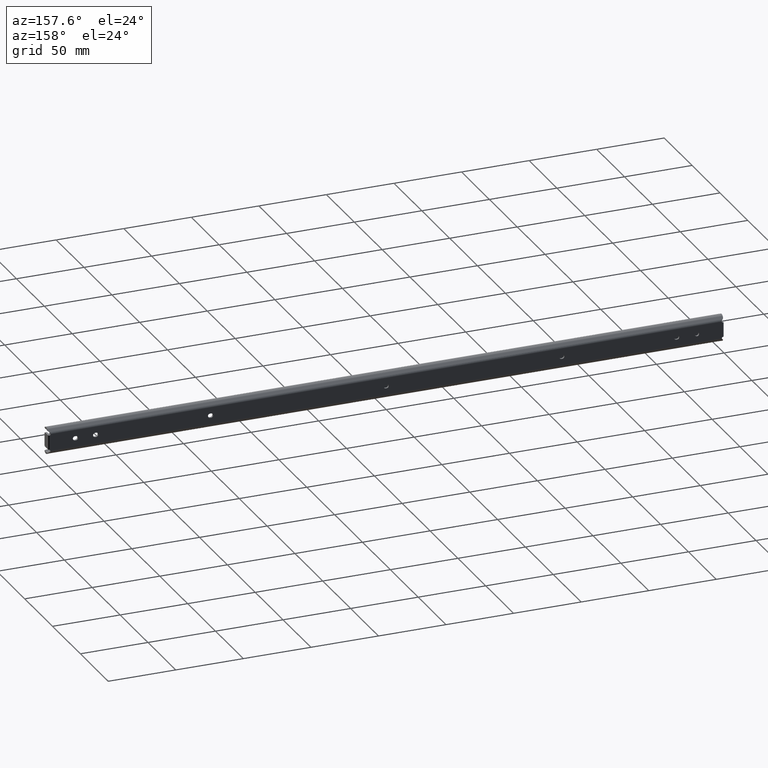
[diagram: clean part render]
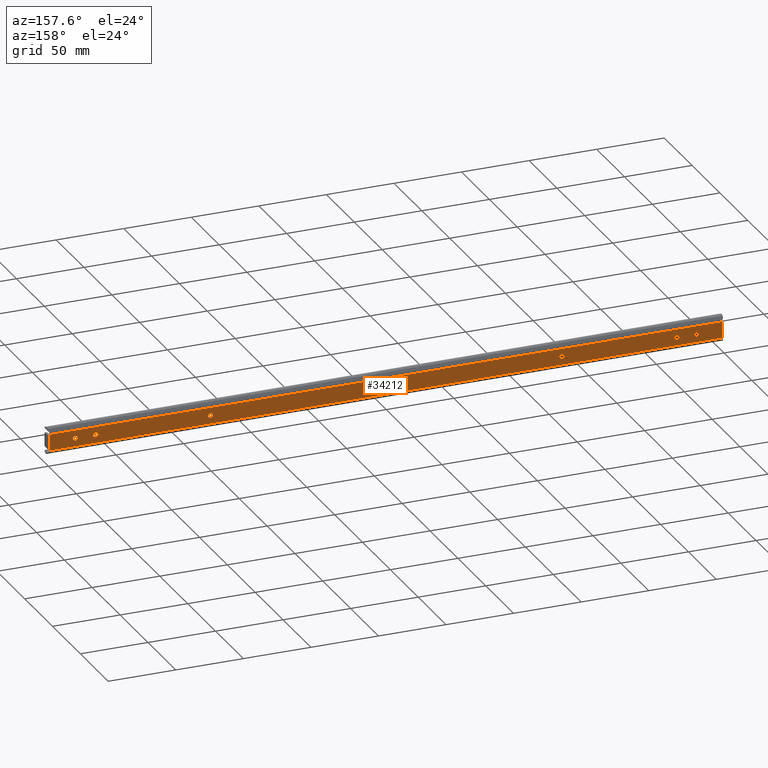
[diagram: same view with one face highlighted and labeled with its STEP entity id]
A machine part, auxiliary view. The second image highlights one B-rep face of the part: STEP entity #34212.
In plain terms, the highlighted face is a freeform B-spline surface patch.
Its self-contained STEP definition (entity closure, byte-faithful):
#30603=CARTESIAN_POINT('',(21.588815240927872,4.968999E-017,-0.188854786000529));
#30604=VERTEX_POINT('',#30603);
#30605=CARTESIAN_POINT('',(20.0,0.0,1.600000000000000));
#30606=VERTEX_POINT('',#30605);
#30607=CARTESIAN_POINT('',(21.588815240927872,4.968999E-017,-0.188854786000529));
#30608=CARTESIAN_POINT('',(21.599999999999998,0.0,-0.094758602104302));
#30609=CARTESIAN_POINT('',(21.600000000000001,0.0,0.0));
#30610=CARTESIAN_POINT('',(21.600000000000005,0.0,1.600000000000000));
#30611=CARTESIAN_POINT('',(20.0,0.0,1.600000000000000));
#30619=(BOUNDED_CURVE()B_SPLINE_CURVE(2,(#30607,#30608,#30609,#30610,#30611),.UNSPECIFIED.,.F.,.U.)B_SPLINE_CURVE_WITH_KNOTS((3,2,3),(0.729562471271285,0.750000000000000,1.0),.UNSPECIFIED.)CURVE()GEOMETRIC_REPRESENTATION_ITEM()RATIONAL_B_SPLINE_CURVE((0.956026749788849,0.976055945704217,1.0,0.707106781186548,1.0))REPRESENTATION_ITEM(''));
#30620=EDGE_CURVE('',#30604,#30606,#30619,.T.);
#30661=CARTESIAN_POINT('',(18.402984322537680,-3.122502E-017,0.097677663462970));
#30662=VERTEX_POINT('',#30661);
#30668=CARTESIAN_POINT('',(20.0,0.0,1.600000000000000));
#30669=CARTESIAN_POINT('',(18.494870293342174,0.0,1.600000000000000));
#30670=CARTESIAN_POINT('',(18.402984322537687,-3.122502E-017,0.097677663462970));
#30678=(BOUNDED_CURVE()B_SPLINE_CURVE(2,(#30668,#30669,#30670),.UNSPECIFIED.,.F.,.U.)B_SPLINE_CURVE_WITH_KNOTS((3,3),(0.0,0.239332962197196),.UNSPECIFIED.)CURVE()GEOMETRIC_REPRESENTATION_ITEM()RATIONAL_B_SPLINE_CURVE((1.0,0.719603993335620,0.976072041577245))REPRESENTATION_ITEM(''));
#30679=EDGE_CURVE('',#30606,#30662,#30678,.T.);
#30702=CARTESIAN_POINT('',(20.0,0.0,-1.600000000000000));
#30703=VERTEX_POINT('',#30702);
#30704=CARTESIAN_POINT('',(20.0,0.0,-1.600000000000000));
#30705=CARTESIAN_POINT('',(21.421079222517434,0.0,-1.600000000000000));
#30706=CARTESIAN_POINT('',(21.588815240927868,4.968999E-017,-0.188854786000529));
#30714=(BOUNDED_CURVE()B_SPLINE_CURVE(2,(#30704,#30705,#30706),.UNSPECIFIED.,.F.,.U.)B_SPLINE_CURVE_WITH_KNOTS((3,3),(0.500000000000000,0.729562471271285),.UNSPECIFIED.)CURVE()GEOMETRIC_REPRESENTATION_ITEM()RATIONAL_B_SPLINE_CURVE((1.0,0.731050835482330,0.956026749788850))REPRESENTATION_ITEM(''));
#30715=EDGE_CURVE('',#30703,#30604,#30714,.T.);
#30717=CARTESIAN_POINT('',(18.402984322537687,-3.122502E-017,0.097677663462970));
#30718=CARTESIAN_POINT('',(18.399999999999999,0.0,0.048884421485522));
#30719=CARTESIAN_POINT('',(18.399999999999999,0.0,0.0));
#30720=CARTESIAN_POINT('',(18.399999999999991,0.0,-1.600000000000000));
#30721=CARTESIAN_POINT('',(20.0,0.0,-1.600000000000000));
#30729=(BOUNDED_CURVE()B_SPLINE_CURVE(2,(#30717,#30718,#30719,#30720,#30721),.UNSPECIFIED.,.F.,.U.)B_SPLINE_CURVE_WITH_KNOTS((3,2,3),(0.239332962197195,0.250000000000000,0.500000000000000),.UNSPECIFIED.)CURVE()GEOMETRIC_REPRESENTATION_ITEM()RATIONAL_B_SPLINE_CURVE((0.976072041577245,0.987502787850927,1.0,0.707106781186548,1.0))REPRESENTATION_ITEM(''));
#30730=EDGE_CURVE('',#30662,#30703,#30729,.T.);
#30781=CARTESIAN_POINT('',(480.300000000000010,8.526513E-014,-1.600000000000000));
#30782=VERTEX_POINT('',#30781);
#30788=CARTESIAN_POINT('',(479.699999999999990,0.0,-1.600000000000025));
#30789=VERTEX_POINT('',#30788);
#30790=CARTESIAN_POINT('',(479.699999999999990,0.0,-1.600000000000025));
#30791=CARTESIAN_POINT('',(480.300000000000010,8.526513E-014,-1.600000000000000));
#30792=QUASI_UNIFORM_CURVE('',1,(#30790,#30791),.UNSPECIFIED.,.F.,.U.);
#30793=EDGE_CURVE('',#30789,#30782,#30792,.T.);
#30839=CARTESIAN_POINT('',(479.699999999999990,0.0,1.599999999999795));
#30840=VERTEX_POINT('',#30839);
#30841=CARTESIAN_POINT('',(479.699999999999990,0.0,1.600000000000025));
#30842=CARTESIAN_POINT('',(478.099999999999970,0.0,1.600000000000026));
#30843=CARTESIAN_POINT('',(478.100000000000020,0.0,0.0));
#30844=CARTESIAN_POINT('',(478.099999999999970,0.0,-1.600000000000026));
#30845=CARTESIAN_POINT('',(479.699999999999990,0.0,-1.600000000000025));
#30853=(BOUNDED_CURVE()B_SPLINE_CURVE(2,(#30841,#30842,#30843,#30844,#30845),.UNSPECIFIED.,.F.,.U.)B_SPLINE_CURVE_WITH_KNOTS((3,2,3),(0.0,0.500000000000000,1.0),.UNSPECIFIED.)CURVE()GEOMETRIC_REPRESENTATION_ITEM()RATIONAL_B_SPLINE_CURVE((1.0,0.707106781186547,1.0,0.707106781186547,1.0))REPRESENTATION_ITEM(''));
#30854=EDGE_CURVE('',#30840,#30789,#30853,.T.);
#30877=CARTESIAN_POINT('',(480.300000000000010,0.0,1.599999999999795));
#30878=VERTEX_POINT('',#30877);
#30879=CARTESIAN_POINT('',(480.300000000000010,0.0,1.599999999999795));
#30880=CARTESIAN_POINT('',(479.699999999999990,0.0,1.599999999999795));
#30881=QUASI_UNIFORM_CURVE('',1,(#30879,#30880),.UNSPECIFIED.,.F.,.U.);
#30882=EDGE_CURVE('',#30878,#30840,#30881,.T.);
#30926=CARTESIAN_POINT('',(480.300000000000010,0.0,-1.600000000000025));
#30927=CARTESIAN_POINT('',(481.899999999999920,0.0,-1.600000000000026));
#30928=CARTESIAN_POINT('',(481.899999999999980,0.0,0.0));
#30929=CARTESIAN_POINT('',(481.899999999999920,0.0,1.600000000000026));
#30930=CARTESIAN_POINT('',(480.300000000000010,0.0,1.600000000000025));
#30938=(BOUNDED_CURVE()B_SPLINE_CURVE(2,(#30926,#30927,#30928,#30929,#30930),.UNSPECIFIED.,.F.,.U.)B_SPLINE_CURVE_WITH_KNOTS((3,2,3),(0.0,0.500000000000000,1.0),.UNSPECIFIED.)CURVE()GEOMETRIC_REPRESENTATION_ITEM()RATIONAL_B_SPLINE_CURVE((1.0,0.707106781186547,1.0,0.707106781186547,1.0))REPRESENTATION_ITEM(''));
#30939=EDGE_CURVE('',#30782,#30878,#30938,.T.);
#30959=CARTESIAN_POINT('',(465.300000000000010,8.526513E-014,-1.600000000000000));
#30960=VERTEX_POINT('',#30959);
#30966=CARTESIAN_POINT('',(464.699999999999990,0.0,-1.600000000000025));
#30967=VERTEX_POINT('',#30966);
#30968=CARTESIAN_POINT('',(464.699999999999990,0.0,-1.600000000000025));
#30969=CARTESIAN_POINT('',(465.300000000000010,8.526513E-014,-1.600000000000000));
#30970=QUASI_UNIFORM_CURVE('',1,(#30968,#30969),.UNSPECIFIED.,.F.,.U.);
#30971=EDGE_CURVE('',#30967,#30960,#30970,.T.);
#31017=CARTESIAN_POINT('',(464.699999999999990,0.0,1.599999999999795));
#31018=VERTEX_POINT('',#31017);
#31019=CARTESIAN_POINT('',(464.699999999999990,0.0,1.600000000000025));
#31020=CARTESIAN_POINT('',(463.099999999999970,0.0,1.600000000000026));
#31021=CARTESIAN_POINT('',(463.100000000000020,0.0,0.0));
#31022=CARTESIAN_POINT('',(463.099999999999970,0.0,-1.600000000000026));
#31023=CARTESIAN_POINT('',(464.699999999999990,0.0,-1.600000000000025));
#31031=(BOUNDED_CURVE()B_SPLINE_CURVE(2,(#31019,#31020,#31021,#31022,#31023),.UNSPECIFIED.,.F.,.U.)B_SPLINE_CURVE_WITH_KNOTS((3,2,3),(0.0,0.500000000000000,1.0),.UNSPECIFIED.)CURVE()GEOMETRIC_REPRESENTATION_ITEM()RATIONAL_B_SPLINE_CURVE((1.0,0.707106781186547,1.0,0.707106781186547,1.0))REPRESENTATION_ITEM(''));
#31032=EDGE_CURVE('',#31018,#30967,#31031,.T.);
#31055=CARTESIAN_POINT('',(465.300000000000010,0.0,1.599999999999795));
#31056=VERTEX_POINT('',#31055);
#31057=CARTESIAN_POINT('',(465.300000000000010,0.0,1.599999999999795));
#31058=CARTESIAN_POINT('',(464.699999999999990,0.0,1.599999999999795));
#31059=QUASI_UNIFORM_CURVE('',1,(#31057,#31058),.UNSPECIFIED.,.F.,.U.);
#31060=EDGE_CURVE('',#31056,#31018,#31059,.T.);
#31104=CARTESIAN_POINT('',(465.300000000000010,0.0,-1.600000000000025));
#31105=CARTESIAN_POINT('',(466.899999999999980,0.0,-1.600000000000026));
#31106=CARTESIAN_POINT('',(466.899999999999980,0.0,0.0));
#31107=CARTESIAN_POINT('',(466.899999999999980,0.0,1.600000000000026));
#31108=CARTESIAN_POINT('',(465.300000000000010,0.0,1.600000000000025));
#31116=(BOUNDED_CURVE()B_SPLINE_CURVE(2,(#31104,#31105,#31106,#31107,#31108),.UNSPECIFIED.,.F.,.U.)B_SPLINE_CURVE_WITH_KNOTS((3,2,3),(0.0,0.500000000000000,1.0),.UNSPECIFIED.)CURVE()GEOMETRIC_REPRESENTATION_ITEM()RATIONAL_B_SPLINE_CURVE((1.0,0.707106781186547,1.0,0.707106781186547,1.0))REPRESENTATION_ITEM(''));
#31117=EDGE_CURVE('',#30960,#31056,#31116,.T.);
#31137=CARTESIAN_POINT('',(380.300000000000010,8.526513E-014,-1.600000000000000));
#31138=VERTEX_POINT('',#31137);
#31144=CARTESIAN_POINT('',(379.699999999999990,0.0,-1.600000000000025));
#31145=VERTEX_POINT('',#31144);
#31146=CARTESIAN_POINT('',(379.699999999999990,0.0,-1.600000000000025));
#31147=CARTESIAN_POINT('',(380.300000000000010,8.526513E-014,-1.600000000000000));
#31148=QUASI_UNIFORM_CURVE('',1,(#31146,#31147),.UNSPECIFIED.,.F.,.U.);
#31149=EDGE_CURVE('',#31145,#31138,#31148,.T.);
#31195=CARTESIAN_POINT('',(379.699999999999990,0.0,1.599999999999795));
#31196=VERTEX_POINT('',#31195);
#31197=CARTESIAN_POINT('',(379.699999999999990,0.0,1.600000000000025));
#31198=CARTESIAN_POINT('',(378.100000000000020,0.0,1.600000000000026));
#31199=CARTESIAN_POINT('',(378.099999999999910,0.0,0.0));
#31200=CARTESIAN_POINT('',(378.100000000000020,0.0,-1.600000000000026));
#31201=CARTESIAN_POINT('',(379.699999999999990,0.0,-1.600000000000025));
#31209=(BOUNDED_CURVE()B_SPLINE_CURVE(2,(#31197,#31198,#31199,#31200,#31201),.UNSPECIFIED.,.F.,.U.)B_SPLINE_CURVE_WITH_KNOTS((3,2,3),(0.0,0.500000000000000,1.0),.UNSPECIFIED.)CURVE()GEOMETRIC_REPRESENTATION_ITEM()RATIONAL_B_SPLINE_CURVE((1.0,0.707106781186547,1.0,0.707106781186547,1.0))REPRESENTATION_ITEM(''));
#31210=EDGE_CURVE('',#31196,#31145,#31209,.T.);
#31233=CARTESIAN_POINT('',(380.300000000000010,0.0,1.599999999999795));
#31234=VERTEX_POINT('',#31233);
#31235=CARTESIAN_POINT('',(380.300000000000010,0.0,1.599999999999795));
#31236=CARTESIAN_POINT('',(379.699999999999990,0.0,1.599999999999795));
#31237=QUASI_UNIFORM_CURVE('',1,(#31235,#31236),.UNSPECIFIED.,.F.,.U.);
#31238=EDGE_CURVE('',#31234,#31196,#31237,.T.);
#31282=CARTESIAN_POINT('',(380.300000000000010,0.0,-1.600000000000025));
#31283=CARTESIAN_POINT('',(381.900000000000150,0.0,-1.600000000000026));
#31284=CARTESIAN_POINT('',(381.900000000000090,0.0,0.0));
#31285=CARTESIAN_POINT('',(381.900000000000150,0.0,1.600000000000026));
#31286=CARTESIAN_POINT('',(380.300000000000010,0.0,1.600000000000025));
#31294=(BOUNDED_CURVE()B_SPLINE_CURVE(2,(#31282,#31283,#31284,#31285,#31286),.UNSPECIFIED.,.F.,.U.)B_SPLINE_CURVE_WITH_KNOTS((3,2,3),(0.0,0.500000000000000,1.0),.UNSPECIFIED.)CURVE()GEOMETRIC_REPRESENTATION_ITEM()RATIONAL_B_SPLINE_CURVE((1.0,0.707106781186547,1.0,0.707106781186547,1.0))REPRESENTATION_ITEM(''));
#31295=EDGE_CURVE('',#31138,#31234,#31294,.T.);
#31315=CARTESIAN_POINT('',(250.300000000000010,8.526513E-014,-1.600000000000080));
#31316=VERTEX_POINT('',#31315);
#31322=CARTESIAN_POINT('',(249.699999999999990,0.0,-1.600000000000000));
#31323=VERTEX_POINT('',#31322);
#31324=CARTESIAN_POINT('',(249.699999999999990,0.0,-1.600000000000000));
#31325=CARTESIAN_POINT('',(250.300000000000010,8.526513E-014,-1.600000000000080));
#31326=QUASI_UNIFORM_CURVE('',1,(#31324,#31325),.UNSPECIFIED.,.F.,.U.);
#31327=EDGE_CURVE('',#31323,#31316,#31326,.T.);
#31373=CARTESIAN_POINT('',(249.699999999999990,0.0,1.600000000000025));
#31374=VERTEX_POINT('',#31373);
#31375=CARTESIAN_POINT('',(249.699999999999990,0.0,1.600000000000000));
#31376=CARTESIAN_POINT('',(248.100000000000080,0.0,1.600000000000000));
#31377=CARTESIAN_POINT('',(248.099999999999990,0.0,0.0));
#31378=CARTESIAN_POINT('',(248.100000000000080,0.0,-1.600000000000000));
#31379=CARTESIAN_POINT('',(249.699999999999990,0.0,-1.600000000000000));
#31387=(BOUNDED_CURVE()B_SPLINE_CURVE(2,(#31375,#31376,#31377,#31378,#31379),.UNSPECIFIED.,.F.,.U.)B_SPLINE_CURVE_WITH_KNOTS((3,2,3),(0.0,0.500000000000000,1.0),.UNSPECIFIED.)CURVE()GEOMETRIC_REPRESENTATION_ITEM()RATIONAL_B_SPLINE_CURVE((1.0,0.707106781186548,1.0,0.707106781186548,1.0))REPRESENTATION_ITEM(''));
#31388=EDGE_CURVE('',#31374,#31323,#31387,.T.);
#31411=CARTESIAN_POINT('',(250.300000000000010,0.0,1.600000000000025));
#31412=VERTEX_POINT('',#31411);
#31413=CARTESIAN_POINT('',(250.300000000000010,0.0,1.600000000000025));
#31414=CARTESIAN_POINT('',(249.699999999999990,0.0,1.600000000000025));
#31415=QUASI_UNIFORM_CURVE('',1,(#31413,#31414),.UNSPECIFIED.,.F.,.U.);
#31416=EDGE_CURVE('',#31412,#31374,#31415,.T.);
#31460=CARTESIAN_POINT('',(250.300000000000010,0.0,-1.600000000000000));
#31461=CARTESIAN_POINT('',(251.900000000000090,0.0,-1.600000000000000));
#31462=CARTESIAN_POINT('',(251.900000000000010,0.0,0.0));
#31463=CARTESIAN_POINT('',(251.900000000000090,0.0,1.600000000000000));
#31464=CARTESIAN_POINT('',(250.300000000000010,0.0,1.600000000000000));
#31472=(BOUNDED_CURVE()B_SPLINE_CURVE(2,(#31460,#31461,#31462,#31463,#31464),.UNSPECIFIED.,.F.,.U.)B_SPLINE_CURVE_WITH_KNOTS((3,2,3),(0.0,0.500000000000000,1.0),.UNSPECIFIED.)CURVE()GEOMETRIC_REPRESENTATION_ITEM()RATIONAL_B_SPLINE_CURVE((1.0,0.707106781186548,1.0,0.707106781186548,1.0))REPRESENTATION_ITEM(''));
#31473=EDGE_CURVE('',#31316,#31412,#31472,.T.);
#31493=CARTESIAN_POINT('',(120.300000000000000,8.526513E-014,-1.600000000000080));
#31494=VERTEX_POINT('',#31493);
#31500=CARTESIAN_POINT('',(119.700000000000000,0.0,-1.600000000000000));
#31501=VERTEX_POINT('',#31500);
#31502=CARTESIAN_POINT('',(119.700000000000000,0.0,-1.600000000000000));
#31503=CARTESIAN_POINT('',(120.300000000000000,8.526513E-014,-1.600000000000080));
#31504=QUASI_UNIFORM_CURVE('',1,(#31502,#31503),.UNSPECIFIED.,.F.,.U.);
#31505=EDGE_CURVE('',#31501,#31494,#31504,.T.);
#31551=CARTESIAN_POINT('',(119.700000000000000,0.0,1.600000000000025));
#31552=VERTEX_POINT('',#31551);
#31553=CARTESIAN_POINT('',(119.700000000000000,0.0,1.600000000000000));
#31554=CARTESIAN_POINT('',(118.099999999999980,0.0,1.600000000000000));
#31555=CARTESIAN_POINT('',(118.099999999999990,0.0,0.0));
#31556=CARTESIAN_POINT('',(118.099999999999980,0.0,-1.600000000000000));
#31557=CARTESIAN_POINT('',(119.700000000000000,0.0,-1.600000000000000));
#31565=(BOUNDED_CURVE()B_SPLINE_CURVE(2,(#31553,#31554,#31555,#31556,#31557),.UNSPECIFIED.,.F.,.U.)B_SPLINE_CURVE_WITH_KNOTS((3,2,3),(0.0,0.500000000000000,1.0),.UNSPECIFIED.)CURVE()GEOMETRIC_REPRESENTATION_ITEM()RATIONAL_B_SPLINE_CURVE((1.0,0.707106781186548,1.0,0.707106781186548,1.0))REPRESENTATION_ITEM(''));
#31566=EDGE_CURVE('',#31552,#31501,#31565,.T.);
#31589=CARTESIAN_POINT('',(120.300000000000000,0.0,1.600000000000025));
#31590=VERTEX_POINT('',#31589);
#31591=CARTESIAN_POINT('',(120.300000000000000,0.0,1.600000000000025));
#31592=CARTESIAN_POINT('',(119.700000000000000,0.0,1.600000000000025));
#31593=QUASI_UNIFORM_CURVE('',1,(#31591,#31592),.UNSPECIFIED.,.F.,.U.);
#31594=EDGE_CURVE('',#31590,#31552,#31593,.T.);
#31638=CARTESIAN_POINT('',(120.300000000000000,0.0,-1.600000000000000));
#31639=CARTESIAN_POINT('',(121.900000000000010,0.0,-1.600000000000000));
#31640=CARTESIAN_POINT('',(121.900000000000010,0.0,0.0));
#31641=CARTESIAN_POINT('',(121.900000000000010,0.0,1.600000000000000));
#31642=CARTESIAN_POINT('',(120.300000000000000,0.0,1.600000000000000));
#31650=(BOUNDED_CURVE()B_SPLINE_CURVE(2,(#31638,#31639,#31640,#31641,#31642),.UNSPECIFIED.,.F.,.U.)B_SPLINE_CURVE_WITH_KNOTS((3,2,3),(0.0,0.500000000000000,1.0),.UNSPECIFIED.)CURVE()GEOMETRIC_REPRESENTATION_ITEM()RATIONAL_B_SPLINE_CURVE((1.0,0.707106781186548,1.0,0.707106781186548,1.0))REPRESENTATION_ITEM(''));
#31651=EDGE_CURVE('',#31494,#31590,#31650,.T.);
#31694=CARTESIAN_POINT('',(35.299999999999997,1.110223E-013,1.600000000000000));
#31695=VERTEX_POINT('',#31694);
#31701=CARTESIAN_POINT('',(35.299999999999997,0.0,-1.600000000000000));
#31702=VERTEX_POINT('',#31701);
#31703=CARTESIAN_POINT('',(35.299999999999997,0.0,-1.600000000000000));
#31704=CARTESIAN_POINT('',(36.900000000000006,0.0,-1.600000000000000));
#31705=CARTESIAN_POINT('',(36.899999999999999,0.0,0.0));
#31706=CARTESIAN_POINT('',(36.900000000000006,0.0,1.600000000000000));
#31707=CARTESIAN_POINT('',(35.299999999999997,1.110223E-013,1.600000000000000));
#31715=(BOUNDED_CURVE()B_SPLINE_CURVE(2,(#31703,#31704,#31705,#31706,#31707),.UNSPECIFIED.,.F.,.U.)B_SPLINE_CURVE_WITH_KNOTS((3,2,3),(0.0,0.500000000000000,1.0),.UNSPECIFIED.)CURVE()GEOMETRIC_REPRESENTATION_ITEM()RATIONAL_B_SPLINE_CURVE((1.0,0.707106781186548,1.0,0.707106781186548,1.0))REPRESENTATION_ITEM(''));
#31716=EDGE_CURVE('',#31702,#31695,#31715,.T.);
#31731=CARTESIAN_POINT('',(34.700000000000003,0.0,1.600000000000000));
#31732=VERTEX_POINT('',#31731);
#31740=CARTESIAN_POINT('',(34.700000000000003,0.0,1.600000000000000));
#31741=CARTESIAN_POINT('',(35.299999999999997,1.110223E-013,1.600000000000000));
#31742=QUASI_UNIFORM_CURVE('',1,(#31740,#31741),.UNSPECIFIED.,.F.,.U.);
#31743=EDGE_CURVE('',#31732,#31695,#31742,.T.);
#31789=CARTESIAN_POINT('',(34.700000000000003,0.0,-1.600000000000000));
#31790=VERTEX_POINT('',#31789);
#31796=CARTESIAN_POINT('',(34.700000000000003,0.0,1.600000000000000));
#31797=CARTESIAN_POINT('',(33.100000000000009,0.0,1.600000000000000));
#31798=CARTESIAN_POINT('',(33.100000000000001,0.0,0.0));
#31799=CARTESIAN_POINT('',(33.100000000000009,0.0,-1.600000000000000));
#31800=CARTESIAN_POINT('',(34.700000000000003,0.0,-1.600000000000000));
#31808=(BOUNDED_CURVE()B_SPLINE_CURVE(2,(#31796,#31797,#31798,#31799,#31800),.UNSPECIFIED.,.F.,.U.)B_SPLINE_CURVE_WITH_KNOTS((3,2,3),(0.0,0.500000000000000,1.0),.UNSPECIFIED.)CURVE()GEOMETRIC_REPRESENTATION_ITEM()RATIONAL_B_SPLINE_CURVE((1.0,0.707106781186548,1.0,0.707106781186548,1.0))REPRESENTATION_ITEM(''));
#31809=EDGE_CURVE('',#31732,#31790,#31808,.T.);
#31821=CARTESIAN_POINT('',(35.299999999999997,0.0,-1.600000000000000));
#31822=CARTESIAN_POINT('',(34.700000000000003,0.0,-1.600000000000000));
#31823=QUASI_UNIFORM_CURVE('',1,(#31821,#31822),.UNSPECIFIED.,.F.,.U.);
#31824=EDGE_CURVE('',#31702,#31790,#31823,.T.);
#32284=CARTESIAN_POINT('',(499.0,1.110223E-013,5.383484940997340));
#32285=VERTEX_POINT('',#32284);
#32297=CARTESIAN_POINT('',(498.424053704473010,1.110223E-013,6.081989000000000));
#32298=VERTEX_POINT('',#32297);
#32299=CARTESIAN_POINT('',(499.000000000000110,1.110223E-013,5.383484940997463));
#32300=CARTESIAN_POINT('',(498.534727872480460,1.110223E-013,5.586546423321239));
#32301=CARTESIAN_POINT('',(498.424053704473580,1.110223E-013,6.081989000000136));
#32309=(BOUNDED_CURVE()B_SPLINE_CURVE(2,(#32299,#32300,#32301),.UNSPECIFIED.,.F.,.U.)CURVE()GEOMETRIC_REPRESENTATION_ITEM()QUASI_UNIFORM_CURVE()RATIONAL_B_SPLINE_CURVE((1.0,0.891680773275150,1.0))REPRESENTATION_ITEM(''));
#32310=EDGE_CURVE('',#32285,#32298,#32309,.T.);
#32625=CARTESIAN_POINT('',(498.424053704473010,1.110223E-013,-6.081989000000000));
#32626=VERTEX_POINT('',#32625);
#32627=CARTESIAN_POINT('',(499.0,8.526513E-014,-5.383484940997340));
#32628=VERTEX_POINT('',#32627);
#32629=CARTESIAN_POINT('',(498.424053704473580,1.110223E-013,-6.081989000000137));
#32630=CARTESIAN_POINT('',(498.534727872480460,1.110223E-013,-5.586546423321241));
#32631=CARTESIAN_POINT('',(499.000000000000110,1.110223E-013,-5.383484940997465));
#32639=(BOUNDED_CURVE()B_SPLINE_CURVE(2,(#32629,#32630,#32631),.UNSPECIFIED.,.F.,.U.)CURVE()GEOMETRIC_REPRESENTATION_ITEM()QUASI_UNIFORM_CURVE()RATIONAL_B_SPLINE_CURVE((1.0,0.891680773275150,1.0))REPRESENTATION_ITEM(''));
#32640=EDGE_CURVE('',#32626,#32628,#32639,.T.);
#32734=CARTESIAN_POINT('',(1.0,1.110223E-013,5.383484940997340));
#32735=VERTEX_POINT('',#32734);
#32749=CARTESIAN_POINT('',(1.0,1.110223E-013,-5.383484940997340));
#32750=VERTEX_POINT('',#32749);
#32751=CARTESIAN_POINT('',(1.0,1.110223E-013,-5.383484940997340));
#32752=CARTESIAN_POINT('',(1.0,1.110223E-013,5.383484940997340));
#32753=QUASI_UNIFORM_CURVE('',1,(#32751,#32752),.UNSPECIFIED.,.F.,.U.);
#32754=EDGE_CURVE('',#32750,#32735,#32753,.T.);
#33196=CARTESIAN_POINT('',(1.575946295526720,1.110223E-013,6.081989000000000));
#33197=VERTEX_POINT('',#33196);
#33198=CARTESIAN_POINT('',(0.999999999999997,1.110223E-013,5.383484940997347));
#33199=CARTESIAN_POINT('',(1.465272127519829,1.110223E-013,5.586546423321026));
#33200=CARTESIAN_POINT('',(1.575946295526721,1.110223E-013,6.081989000000000));
#33208=(BOUNDED_CURVE()B_SPLINE_CURVE(2,(#33198,#33199,#33200),.UNSPECIFIED.,.F.,.U.)CURVE()GEOMETRIC_REPRESENTATION_ITEM()QUASI_UNIFORM_CURVE()RATIONAL_B_SPLINE_CURVE((1.0,0.891680773275115,1.0))REPRESENTATION_ITEM(''));
#33209=EDGE_CURVE('',#32735,#33197,#33208,.T.);
#33422=CARTESIAN_POINT('',(1.575946295526720,1.110223E-013,-6.081989000000000));
#33423=VERTEX_POINT('',#33422);
#33424=CARTESIAN_POINT('',(1.575946295526719,1.110223E-013,-6.081989000000001));
#33425=CARTESIAN_POINT('',(1.465272127519828,1.110223E-013,-5.586546423321027));
#33426=CARTESIAN_POINT('',(0.999999999999997,1.110223E-013,-5.383484940997349));
#33434=(BOUNDED_CURVE()B_SPLINE_CURVE(2,(#33424,#33425,#33426),.UNSPECIFIED.,.F.,.U.)CURVE()GEOMETRIC_REPRESENTATION_ITEM()QUASI_UNIFORM_CURVE()RATIONAL_B_SPLINE_CURVE((1.0,0.891680773275115,1.0))REPRESENTATION_ITEM(''));
#33435=EDGE_CURVE('',#33423,#32750,#33434,.T.);
#33728=CARTESIAN_POINT('',(498.424053704473010,1.110223E-013,-6.081989000000000));
#33729=CARTESIAN_POINT('',(1.575946295526720,1.110223E-013,-6.081989000000000));
#33730=QUASI_UNIFORM_CURVE('',1,(#33728,#33729),.UNSPECIFIED.,.F.,.U.);
#33731=EDGE_CURVE('',#32626,#33423,#33730,.T.);
#33844=CARTESIAN_POINT('',(499.0,1.110223E-013,5.383484940997340));
#33845=CARTESIAN_POINT('',(499.0,8.526513E-014,-5.383484940997340));
#33846=QUASI_UNIFORM_CURVE('',1,(#33844,#33845),.UNSPECIFIED.,.F.,.U.);
#33847=EDGE_CURVE('',#32285,#32628,#33846,.T.);
#34052=CARTESIAN_POINT('',(498.424053704473010,1.110223E-013,6.081989000000000));
#34053=CARTESIAN_POINT('',(1.575946295526720,1.110223E-013,6.081989000000000));
#34054=QUASI_UNIFORM_CURVE('',1,(#34052,#34053),.UNSPECIFIED.,.F.,.U.);
#34055=EDGE_CURVE('',#32298,#33197,#34054,.T.);
#34155=CARTESIAN_POINT('',(-23.875099034779389,8.526513E-014,-6.689579519878855));
#34156=CARTESIAN_POINT('',(-23.875099034779389,8.526513E-014,6.689579084861102));
#34157=CARTESIAN_POINT('',(523.875112392180310,8.526513E-014,-6.689579519878855));
#34158=CARTESIAN_POINT('',(523.875112392180310,8.526513E-014,6.689579084861102));
#34159=B_SPLINE_SURFACE_WITH_KNOTS('',1,1,((#34155,#34157),(#34156,#34158)),.UNSPECIFIED.,.F.,.F.,.U.,(2,2),(2,2),(0.0,13.379158604739960),(0.0,547.750211426959710),.UNSPECIFIED.);
#34160=ORIENTED_EDGE('',*,*,#32310,.F.);
#34161=ORIENTED_EDGE('',*,*,#33847,.T.);
#34162=ORIENTED_EDGE('',*,*,#32640,.F.);
#34163=ORIENTED_EDGE('',*,*,#33731,.T.);
#34164=ORIENTED_EDGE('',*,*,#33435,.T.);
#34165=ORIENTED_EDGE('',*,*,#32754,.T.);
#34166=ORIENTED_EDGE('',*,*,#33209,.T.);
#34167=ORIENTED_EDGE('',*,*,#34055,.F.);
#34168=EDGE_LOOP('',(#34160,#34161,#34162,#34163,#34164,#34165,#34166,#34167));
#34169=FACE_OUTER_BOUND('',#34168,.T.);
#34170=ORIENTED_EDGE('',*,*,#31117,.T.);
#34171=ORIENTED_EDGE('',*,*,#31060,.T.);
#34172=ORIENTED_EDGE('',*,*,#31032,.T.);
#34173=ORIENTED_EDGE('',*,*,#30971,.T.);
#34174=EDGE_LOOP('',(#34170,#34171,#34172,#34173));
#34175=FACE_BOUND('',#34174,.T.);
#34176=ORIENTED_EDGE('',*,*,#31295,.T.);
#34177=ORIENTED_EDGE('',*,*,#31238,.T.);
#34178=ORIENTED_EDGE('',*,*,#31210,.T.);
#34179=ORIENTED_EDGE('',*,*,#31149,.T.);
#34180=EDGE_LOOP('',(#34176,#34177,#34178,#34179));
#34181=FACE_BOUND('',#34180,.T.);
#34182=ORIENTED_EDGE('',*,*,#31473,.T.);
#34183=ORIENTED_EDGE('',*,*,#31416,.T.);
#34184=ORIENTED_EDGE('',*,*,#31388,.T.);
#34185=ORIENTED_EDGE('',*,*,#31327,.T.);
#34186=EDGE_LOOP('',(#34182,#34183,#34184,#34185));
#34187=FACE_BOUND('',#34186,.T.);
#34188=ORIENTED_EDGE('',*,*,#31651,.T.);
#34189=ORIENTED_EDGE('',*,*,#31594,.T.);
#34190=ORIENTED_EDGE('',*,*,#31566,.T.);
#34191=ORIENTED_EDGE('',*,*,#31505,.T.);
#34192=EDGE_LOOP('',(#34188,#34189,#34190,#34191));
#34193=FACE_BOUND('',#34192,.T.);
#34194=ORIENTED_EDGE('',*,*,#30939,.T.);
#34195=ORIENTED_EDGE('',*,*,#30882,.T.);
#34196=ORIENTED_EDGE('',*,*,#30854,.T.);
#34197=ORIENTED_EDGE('',*,*,#30793,.T.);
#34198=EDGE_LOOP('',(#34194,#34195,#34196,#34197));
#34199=FACE_BOUND('',#34198,.T.);
#34200=ORIENTED_EDGE('',*,*,#31809,.T.);
#34201=ORIENTED_EDGE('',*,*,#31824,.F.);
#34202=ORIENTED_EDGE('',*,*,#31716,.T.);
#34203=ORIENTED_EDGE('',*,*,#31743,.F.);
#34204=EDGE_LOOP('',(#34200,#34201,#34202,#34203));
#34205=FACE_BOUND('',#34204,.T.);
#34206=ORIENTED_EDGE('',*,*,#30679,.T.);
#34207=ORIENTED_EDGE('',*,*,#30730,.T.);
#34208=ORIENTED_EDGE('',*,*,#30715,.T.);
#34209=ORIENTED_EDGE('',*,*,#30620,.T.);
#34210=EDGE_LOOP('',(#34206,#34207,#34208,#34209));
#34211=FACE_BOUND('',#34210,.T.);
#34212=ADVANCED_FACE('',(#34169,#34175,#34181,#34187,#34193,#34199,#34205,#34211),#34159,.T.);